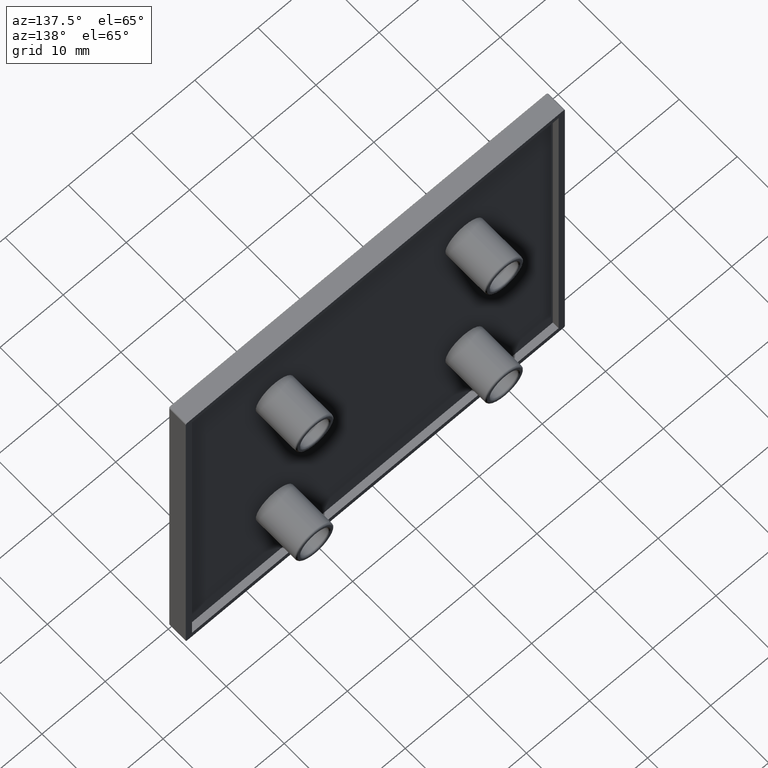
[diagram: clean part render]
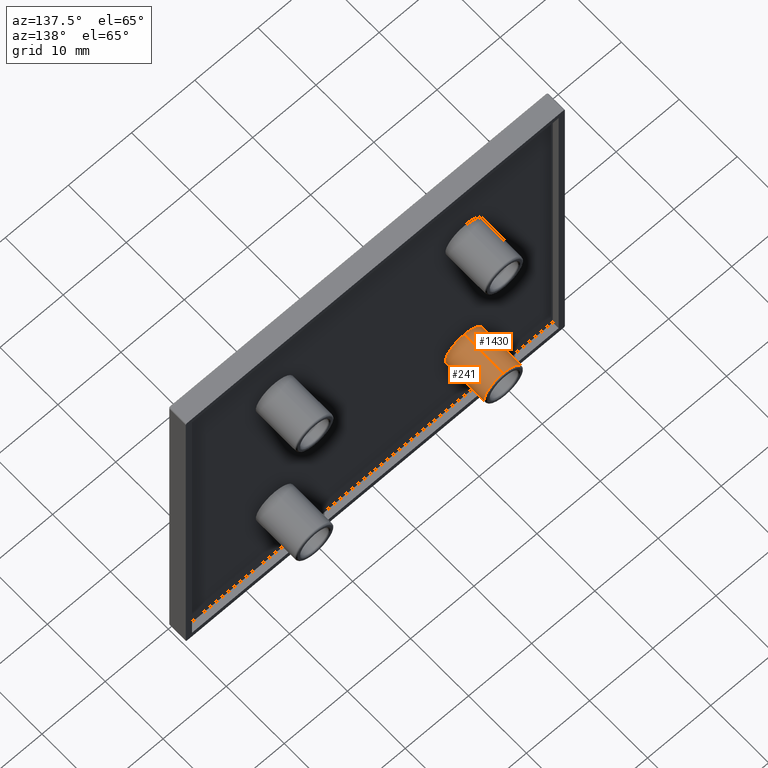
[diagram: same view with one multi-face feature highlighted, each face labeled with its STEP entity id]
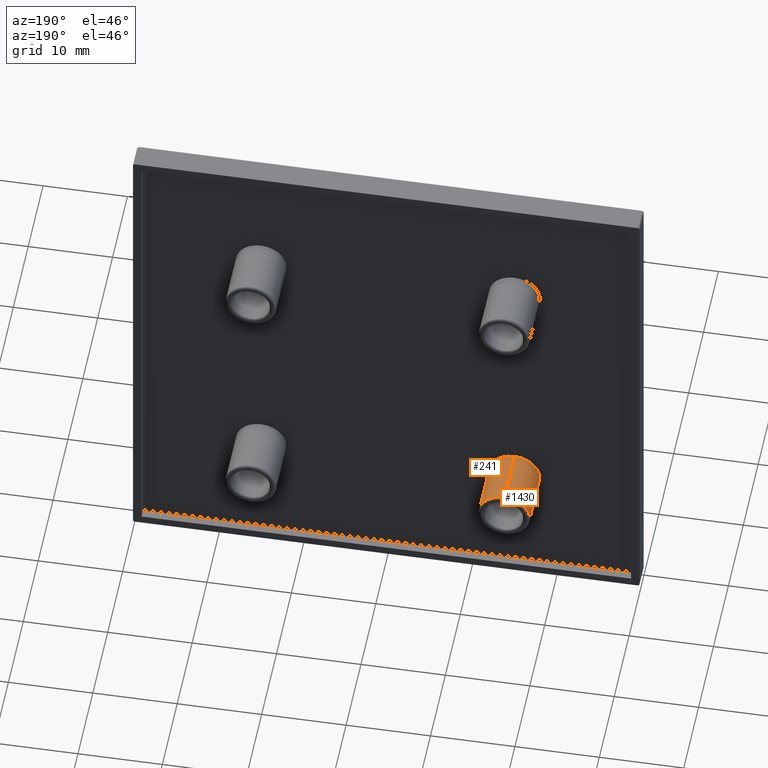
[diagram: same view with one multi-face feature highlighted, each face labeled with its STEP entity id]
A machine part, auxiliary view. The highlighted faces form ONE feature: a constant-radius fillet chain: 2 tangent blend faces with common blend radius 3 mm. The faces share edges in the B-rep.
A second angle (auxiliary view) of the same feature is appended — it is thin or edge-on in the first view.
Their STEP definitions:
[1] entity #1430 (Cylinder):
#20 = EDGE_CURVE ( 'NONE', #809, #626, #1338, .T. ) ;
#124 = CARTESIAN_POINT ( 'NONE',  ( 15.00000000000000000, 8.750000000000000000, -45.00000000000000000 ) ) ;
#125 = DIRECTION ( 'NONE',  ( 0.0000000000000000000, -1.000000000000000000, 0.0000000000000000000 ) ) ;
#126 = DIRECTION ( 'NONE',  ( 0.0000000000000000000, 0.0000000000000000000, -1.000000000000000000 ) ) ;
#364 = AXIS2_PLACEMENT_3D ( 'NONE', #1629, #1630, #1631 ) ;
#416 = AXIS2_PLACEMENT_3D ( 'NONE', #124, #125, #126 ) ;
#495 = CIRCLE ( 'NONE', #364, 3.000000000000002700 ) ;
#527 = LINE ( 'NONE', #712, #529 ) ;
#529 = VECTOR ( 'NONE', #713, 1000.000000000000000 ) ;
#530 = LINE ( 'NONE', #714, #531 ) ;
#531 = VECTOR ( 'NONE', #715, 1000.000000000000000 ) ;
#601 = VERTEX_POINT ( 'NONE', #1578 ) ;
#626 = VERTEX_POINT ( 'NONE', #1587 ) ;
#712 = CARTESIAN_POINT ( 'NONE',  ( 15.00000000000000000, 8.750000000000000000, -48.00000000000000000 ) ) ;
#713 = DIRECTION ( 'NONE',  ( 0.0000000000000000000, -1.000000000000000000, 0.0000000000000000000 ) ) ;
#714 = CARTESIAN_POINT ( 'NONE',  ( 15.00000000000000000, 8.750000000000000000, -41.99999999999999300 ) ) ;
#715 = DIRECTION ( 'NONE',  ( 0.0000000000000000000, -1.000000000000000000, 0.0000000000000000000 ) ) ;
#809 = VERTEX_POINT ( 'NONE', #1589 ) ;
#813 = VERTEX_POINT ( 'NONE', #1593 ) ;
#854 = CARTESIAN_POINT ( 'NONE',  ( 15.00000000000000000, 8.750000000000000000, -45.00000000000000000 ) ) ;
#855 = DIRECTION ( 'NONE',  ( -0.0000000000000000000, 1.000000000000000000, -0.0000000000000000000 ) ) ;
#856 = DIRECTION ( 'NONE',  ( 0.0000000000000000000, 0.0000000000000000000, -1.000000000000000000 ) ) ;
#1003 = EDGE_CURVE ( 'NONE', #813, #601, #495, .T. ) ;
#1010 = AXIS2_PLACEMENT_3D ( 'NONE', #854, #855, #856 ) ;
#1028 = EDGE_CURVE ( 'NONE', #809, #601, #527, .T. ) ;
#1029 = EDGE_CURVE ( 'NONE', #626, #813, #530, .T. ) ;
#1133 = ORIENTED_EDGE ( 'NONE', *, *, #1029, .F. ) ;
#1134 = ORIENTED_EDGE ( 'NONE', *, *, #20, .F. ) ;
#1135 = ORIENTED_EDGE ( 'NONE', *, *, #1028, .T. ) ;
#1136 = ORIENTED_EDGE ( 'NONE', *, *, #1003, .F. ) ;
#1220 = EDGE_LOOP ( 'NONE', ( #1133, #1134, #1135, #1136 ) ) ;
#1338 = CIRCLE ( 'NONE', #1010, 3.000000000000002700 ) ;
#1430 = ADVANCED_FACE ( 'NONE', ( #1692 ), #1693, .T. ) ;
#1578 = CARTESIAN_POINT ( 'NONE',  ( 15.00000000000000000, 2.000000000000000000, -48.00000000000000000 ) ) ;
#1587 = CARTESIAN_POINT ( 'NONE',  ( 15.00000000000000000, 8.750000000000000000, -41.99999999999999300 ) ) ;
#1589 = CARTESIAN_POINT ( 'NONE',  ( 15.00000000000000000, 8.750000000000000000, -48.00000000000000000 ) ) ;
#1593 = CARTESIAN_POINT ( 'NONE',  ( 15.00000000000000000, 2.000000000000000000, -41.99999999999999300 ) ) ;
#1629 = CARTESIAN_POINT ( 'NONE',  ( 15.00000000000000000, 2.000000000000000000, -45.00000000000000000 ) ) ;
#1630 = DIRECTION ( 'NONE',  ( 0.0000000000000000000, -1.000000000000000000, 0.0000000000000000000 ) ) ;
#1631 = DIRECTION ( 'NONE',  ( 0.0000000000000000000, 0.0000000000000000000, -1.000000000000000000 ) ) ;
#1692 = FACE_OUTER_BOUND ( 'NONE', #1220, .T. ) ;
#1693 = CYLINDRICAL_SURFACE ( 'NONE', #416, 3.000000000000002700 ) ;
[2] entity #241 (Cylinder):
#241 = ADVANCED_FACE ( 'NONE', ( #1248 ), #1257, .T. ) ;
#323 = AXIS2_PLACEMENT_3D ( 'NONE', #884, #885, #886 ) ;
#373 = AXIS2_PLACEMENT_3D ( 'NONE', #687, #688, #689 ) ;
#376 = AXIS2_PLACEMENT_3D ( 'NONE', #698, #699, #700 ) ;
#517 = CIRCLE ( 'NONE', #373, 3.000000000000002700 ) ;
#522 = CIRCLE ( 'NONE', #376, 3.000000000000002700 ) ;
#527 = LINE ( 'NONE', #712, #529 ) ;
#529 = VECTOR ( 'NONE', #713, 1000.000000000000000 ) ;
#530 = LINE ( 'NONE', #714, #531 ) ;
#531 = VECTOR ( 'NONE', #715, 1000.000000000000000 ) ;
#601 = VERTEX_POINT ( 'NONE', #1578 ) ;
#626 = VERTEX_POINT ( 'NONE', #1587 ) ;
#687 = CARTESIAN_POINT ( 'NONE',  ( 15.00000000000000000, 8.750000000000000000, -45.00000000000000000 ) ) ;
#688 = DIRECTION ( 'NONE',  ( -0.0000000000000000000, 1.000000000000000000, -0.0000000000000000000 ) ) ;
#689 = DIRECTION ( 'NONE',  ( 0.0000000000000000000, 0.0000000000000000000, -1.000000000000000000 ) ) ;
#698 = CARTESIAN_POINT ( 'NONE',  ( 15.00000000000000000, 2.000000000000000000, -45.00000000000000000 ) ) ;
#699 = DIRECTION ( 'NONE',  ( 0.0000000000000000000, -1.000000000000000000, 0.0000000000000000000 ) ) ;
#700 = DIRECTION ( 'NONE',  ( 0.0000000000000000000, 0.0000000000000000000, -1.000000000000000000 ) ) ;
#712 = CARTESIAN_POINT ( 'NONE',  ( 15.00000000000000000, 8.750000000000000000, -48.00000000000000000 ) ) ;
#713 = DIRECTION ( 'NONE',  ( 0.0000000000000000000, -1.000000000000000000, 0.0000000000000000000 ) ) ;
#714 = CARTESIAN_POINT ( 'NONE',  ( 15.00000000000000000, 8.750000000000000000, -41.99999999999999300 ) ) ;
#715 = DIRECTION ( 'NONE',  ( 0.0000000000000000000, -1.000000000000000000, 0.0000000000000000000 ) ) ;
#809 = VERTEX_POINT ( 'NONE', #1589 ) ;
#813 = VERTEX_POINT ( 'NONE', #1593 ) ;
#884 = CARTESIAN_POINT ( 'NONE',  ( 15.00000000000000000, 8.750000000000000000, -45.00000000000000000 ) ) ;
#885 = DIRECTION ( 'NONE',  ( 0.0000000000000000000, -1.000000000000000000, 0.0000000000000000000 ) ) ;
#886 = DIRECTION ( 'NONE',  ( 0.0000000000000000000, 0.0000000000000000000, -1.000000000000000000 ) ) ;
#1019 = EDGE_CURVE ( 'NONE', #626, #809, #517, .T. ) ;
#1023 = EDGE_CURVE ( 'NONE', #601, #813, #522, .T. ) ;
#1028 = EDGE_CURVE ( 'NONE', #809, #601, #527, .T. ) ;
#1029 = EDGE_CURVE ( 'NONE', #626, #813, #530, .T. ) ;
#1217 = EDGE_LOOP ( 'NONE', ( #1273, #1272, #1271, #1270 ) ) ;
#1248 = FACE_OUTER_BOUND ( 'NONE', #1217, .T. ) ;
#1257 = CYLINDRICAL_SURFACE ( 'NONE', #323, 3.000000000000002700 ) ;
#1270 = ORIENTED_EDGE ( 'NONE', *, *, #1028, .F. ) ;
#1271 = ORIENTED_EDGE ( 'NONE', *, *, #1023, .F. ) ;
#1272 = ORIENTED_EDGE ( 'NONE', *, *, #1029, .T. ) ;
#1273 = ORIENTED_EDGE ( 'NONE', *, *, #1019, .F. ) ;
#1578 = CARTESIAN_POINT ( 'NONE',  ( 15.00000000000000000, 2.000000000000000000, -48.00000000000000000 ) ) ;
#1587 = CARTESIAN_POINT ( 'NONE',  ( 15.00000000000000000, 8.750000000000000000, -41.99999999999999300 ) ) ;
#1589 = CARTESIAN_POINT ( 'NONE',  ( 15.00000000000000000, 8.750000000000000000, -48.00000000000000000 ) ) ;
#1593 = CARTESIAN_POINT ( 'NONE',  ( 15.00000000000000000, 2.000000000000000000, -41.99999999999999300 ) ) ;